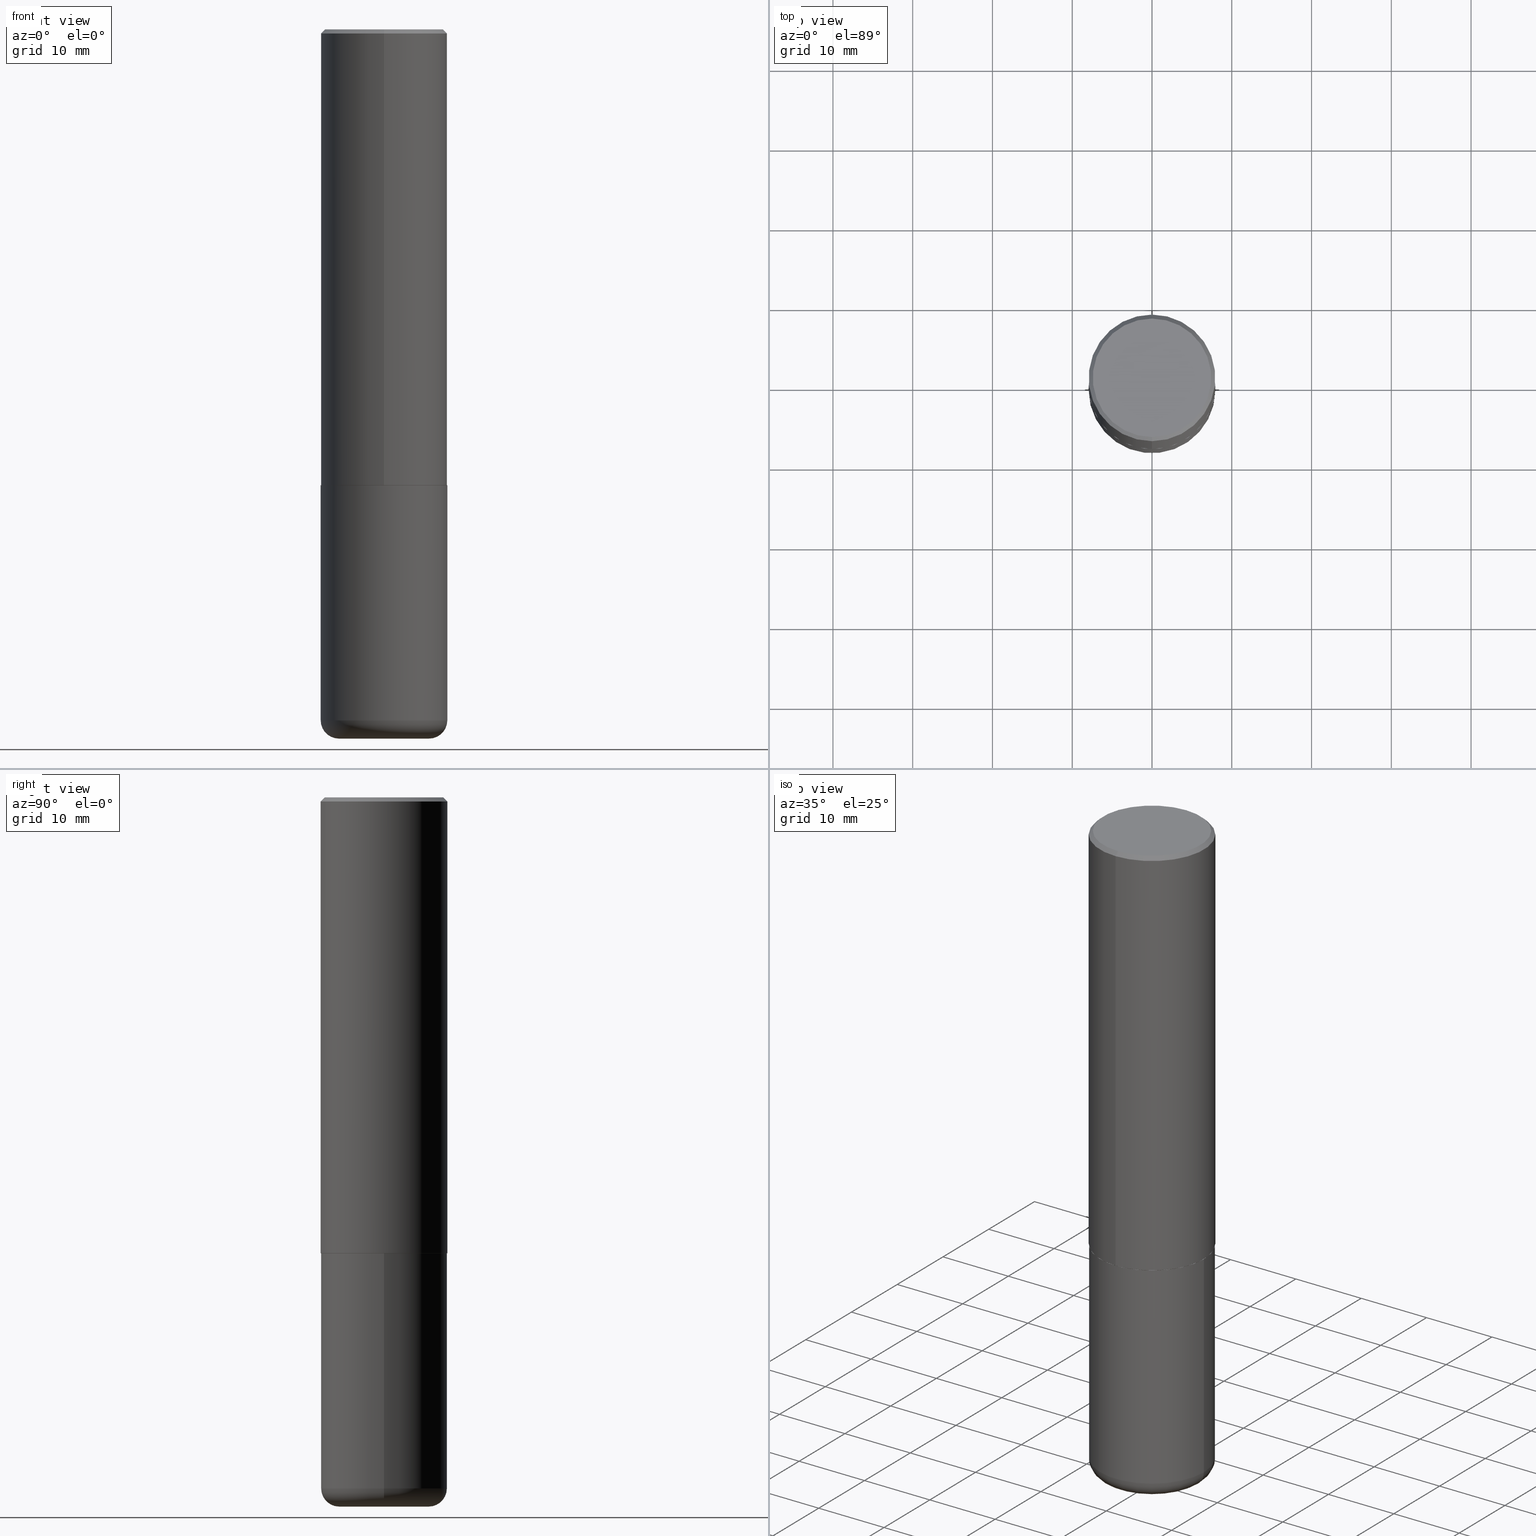
[diagram: canonical four-view strip — front | top / right | iso, engineering-drawing reading convention]
A machine part, canonical four-view strip (front | top / right | iso — engineering-drawing reading convention). The complete STEP part file that produces these views, byte-faithful:
ISO-10303-21;
HEADER;
FILE_DESCRIPTION (( 'STEP AP203' ),
    '1' );
FILE_NAME ('38384.STEP',
    '2024-03-03T02:08:29',
    ( '' ),
    ( '' ),
    'SwSTEP 2.0',
    'SolidWorks 2023',
    '' );
FILE_SCHEMA (( 'CONFIG_CONTROL_DESIGN' ));
ENDSEC;

DATA;
#1 = PRODUCT_DEFINITION ( 'UNKNOWN', '', #224, #147 ) ;
#2 = CARTESIAN_POINT ( 'NONE',  ( 8.339048629091315302E-29, -1.190595136545512608E-14, -3.410000000000000142 ) ) ;
#3 = EDGE_LOOP ( 'NONE', ( #358, #321, #197, #6 ) ) ;
#4 = VERTEX_POINT ( 'NONE', #395 ) ;
#5 = COORDINATED_UNIVERSAL_TIME_OFFSET ( 5, 0, .BEHIND. ) ;
#6 = ORIENTED_EDGE ( 'NONE', *, *, #263, .F. ) ;
#7 = APPROVAL_STATUS ( 'not_yet_approved' ) ;
#8 = DIRECTION ( 'NONE',  ( 1.000000000000000000, -6.982962677686265133E-15, 0.000000000000000000 ) ) ;
#9 = APPROVAL_PERSON_ORGANIZATION ( #298, #31, #103 ) ;
#10 = VECTOR ( 'NONE', #81, 39.37007874015748143 ) ;
#11 = CARTESIAN_POINT ( 'NONE',  ( -2.143905624303602824E-15, -0.3125000000000000555, -0.01999999999999897693 ) ) ;
#12 = DIRECTION ( 'NONE',  ( 0.000000000000000000, 0.000000000000000000, 1.000000000000000000 ) ) ;
#13 = CARTESIAN_POINT ( 'NONE',  ( -0.2225000000000000033, -1.016236620754480236E-14, -3.499999999999999112 ) ) ;
#14 = DIMENSIONAL_EXPONENTS ( 1.000000000000000000, 0.000000000000000000, 0.000000000000000000, 0.000000000000000000, 0.000000000000000000, 0.000000000000000000, 0.000000000000000000 ) ;
#15 = DIRECTION ( 'NONE',  ( 5.024295867787889629E-15, 0.7071067811865257013, 0.7071067811865691111 ) ) ;
#16 = CARTESIAN_POINT ( 'NONE',  ( 5.503935339096356978E-29, -7.853498007535872148E-15, -2.249999999999999556 ) ) ;
#17 = CYLINDRICAL_SURFACE ( 'NONE', #105, 0.3125000000000000000 ) ;
#18 = DIRECTION ( 'NONE',  ( -6.982962677686265133E-15, -1.000000000000000000, 3.496765431890256920E-15 ) ) ;
#19 = EDGE_CURVE ( 'NONE', #275, #136, #98, .T. ) ;
#20 = DIRECTION ( 'NONE',  ( -6.982962677686265133E-15, -1.000000000000000000, 3.490443558904832811E-15 ) ) ;
#21 = VECTOR ( 'NONE', #381, 39.37007874015748143 ) ;
#22 = DIRECTION ( 'NONE',  ( -6.982962677686266711E-15, -1.000000000000000000, 3.491481338843145583E-15 ) ) ;
#23 = EDGE_CURVE ( 'NONE', #90, #392, #182, .T. ) ;
#24 = VECTOR ( 'NONE', #310, 39.37007874015748143 ) ;
#25 = CARTESIAN_POINT ( 'NONE',  ( -0.3125000000000000000, -7.660446139675788393E-15, -2.249999999999999556 ) ) ;
#26 = EDGE_LOOP ( 'NONE', ( #289, #408, #257, #347 ) ) ;
#27 = CC_DESIGN_APPROVAL ( #346, ( #1 ) ) ;
#28 = APPLICATION_PROTOCOL_DEFINITION ( 'international standard', 'config_control_design', 1994, #38 ) ;
#29 = CALENDAR_DATE ( 2024, 2, 3 ) ;
#30 = DIRECTION ( 'NONE',  ( -2.446193484042825510E-29, 3.490443558904832811E-15, 1.000000000000000000 ) ) ;
#31 = APPROVAL ( #7, 'UNSPECIFIED' ) ;
#32 = APPROVAL_PERSON_ORGANIZATION ( #368, #346, #258 ) ;
#33 = CARTESIAN_POINT ( 'NONE',  ( 8.559140821647976968E-29, -1.222018468595100619E-14, -3.499999999999999112 ) ) ;
#34 = ORIENTED_EDGE ( 'NONE', *, *, #249, .T. ) ;
#35 = DATE_AND_TIME ( #397, #137 ) ;
#36 = DIRECTION ( 'NONE',  ( -2.445468806185136597E-29, 3.491481338843145583E-15, 1.000000000000000000 ) ) ;
#37 = CARTESIAN_POINT ( 'NONE',  ( -2.143905624303602824E-15, -0.3125000000000000555, -0.01999999999999897693 ) ) ;
#38 = APPLICATION_CONTEXT ( 'configuration controlled 3d designs of mechanical parts and assemblies' ) ;
#39 = CC_DESIGN_APPROVAL ( #40, ( #150 ) ) ;
#40 = APPROVAL ( #195, 'UNSPECIFIED' ) ;
#41 = LINE ( 'NONE', #274, #10 ) ;
#42 = CARTESIAN_POINT ( 'NONE',  ( 0.000000000000000000, 0.000000000000000000, 0.000000000000000000 ) ) ;
#43 = LINE ( 'NONE', #338, #234 ) ;
#44 = ADVANCED_FACE ( 'NONE', ( #228 ), #162, .T. ) ;
#45 = AXIS2_PLACEMENT_3D ( 'NONE', #390, #235, #8 ) ;
#46 = AXIS2_PLACEMENT_3D ( 'NONE', #206, #153, #117 ) ;
#47 = DIRECTION ( 'NONE',  ( -2.445468806185136877E-29, 3.491481338843145188E-15, 1.000000000000000000 ) ) ;
#48 = AXIS2_PLACEMENT_3D ( 'NONE', #79, #343, #210 ) ;
#49 = ORIENTED_EDGE ( 'NONE', *, *, #360, .T. ) ;
#50 = CARTESIAN_POINT ( 'NONE',  ( 8.339048629091315302E-29, -1.190595136545512608E-14, -3.410000000000000142 ) ) ;
#51 = CARTESIAN_POINT ( 'NONE',  ( 2.042516583223231356E-15, 0.2924999999999998157, -9.271992415134321098E-16 ) ) ;
#52 = AXIS2_PLACEMENT_3D ( 'NONE', #55, #288, #188 ) ;
#53 = DIRECTION ( 'NONE',  ( -2.445468806185136597E-29, 3.491481338843145583E-15, 1.000000000000000000 ) ) ;
#54 = AXIS2_PLACEMENT_3D ( 'NONE', #238, #83, #375 ) ;
#55 = CARTESIAN_POINT ( 'NONE',  ( 5.503935339096356978E-29, -7.853498007535872148E-15, -2.249999999999999556 ) ) ;
#56 = ADVANCED_FACE ( 'NONE', ( #126 ), #271, .T. ) ;
#57 = DIRECTION ( 'NONE',  ( -2.445468806185136597E-29, 3.491481338843145583E-15, 1.000000000000000000 ) ) ;
#58 = MANIFOLD_SOLID_BREP ( 'Body-Move/Copy2[1]', #253 ) ;
#59 = ORIENTED_EDGE ( 'NONE', *, *, #160, .T. ) ;
#60 = PERSON_AND_ORGANIZATION ( #303, #373 ) ;
#61 = CONICAL_SURFACE ( 'NONE', #46, 0.3125000000000000000, 0.7853981633974468357 ) ;
#62 = DIRECTION ( 'NONE',  ( -1.000000000000000000, 7.105427357600996337E-15, 0.000000000000000000 ) ) ;
#63 = AXIS2_PLACEMENT_3D ( 'NONE', #401, #366, #326 ) ;
#64 = PERSON_AND_ORGANIZATION_ROLE ( 'creator' ) ;
#65 = DIRECTION ( 'NONE',  ( 1.000000000000000000, -6.982962677686269077E-15, 0.000000000000000000 ) ) ;
#66 = ADVANCED_FACE ( 'NONE', ( #265 ), #68, .T. ) ;
#67 = COORDINATED_UNIVERSAL_TIME_OFFSET ( 5, 0, .BEHIND. ) ;
#68 = CYLINDRICAL_SURFACE ( 'NONE', #324, 0.3125000000000001665 ) ;
#69 = ORIENTED_EDGE ( 'NONE', *, *, #409, .F. ) ;
#70 = CARTESIAN_POINT ( 'NONE',  ( 0.000000000000000000, 0.000000000000000000, 0.000000000000000000 ) ) ;
#71 = CARTESIAN_POINT ( 'NONE',  ( 8.339048629091315302E-29, -1.190595136545512608E-14, -3.410000000000000142 ) ) ;
#72 = CIRCLE ( 'NONE', #226, 0.3125000000000002776 ) ;
#73 = MECHANICAL_CONTEXT ( 'NONE', #38, 'mechanical' ) ;
#74 = EDGE_LOOP ( 'NONE', ( #102, #184 ) ) ;
#75 = EDGE_CURVE ( 'NONE', #370, #319, #72, .T. ) ;
#76 = DIRECTION ( 'NONE',  ( 1.000000000000000000, -6.982962677686266711E-15, 4.876176775795936353E-29 ) ) ;
#77 = PRODUCT_RELATED_PRODUCT_CATEGORY ( 'detail', '', ( #223 ) ) ;
#78 = DIRECTION ( 'NONE',  ( -2.446193484042825510E-29, 3.490443558904832811E-15, 1.000000000000000000 ) ) ;
#79 = CARTESIAN_POINT ( 'NONE',  ( 5.502304813916556222E-29, -7.855833012397075293E-15, -2.249999999999999556 ) ) ;
#80 = EDGE_CURVE ( 'NONE', #376, #131, #312, .T. ) ;
#81 = DIRECTION ( 'NONE',  ( -2.445468806185136877E-29, 3.491481338843145188E-15, 1.000000000000000000 ) ) ;
#82 = ORIENTED_EDGE ( 'NONE', *, *, #308, .F. ) ;
#83 = DIRECTION ( 'NONE',  ( 2.438088387897960049E-29, -3.491481338843145188E-15, -1.000000000000000000 ) ) ;
#84 = DIRECTION ( 'NONE',  ( -6.982962677686265133E-15, -1.000000000000000000, 3.490443558904832416E-15 ) ) ;
#85 = EDGE_CURVE ( 'NONE', #90, #120, #158, .T. ) ;
#86 = DIRECTION ( 'NONE',  ( 1.000000000000000000, -6.982962677686269077E-15, 0.000000000000000000 ) ) ;
#87 = AXIS2_PLACEMENT_3D ( 'NONE', #341, #78, #143 ) ;
#88 = DIRECTION ( 'NONE',  ( 6.982962677686265922E-15, 1.000000000000000000, -3.490443558904832811E-15 ) ) ;
#89 = EDGE_CURVE ( 'NONE', #392, #90, #305, .T. ) ;
#90 = VERTEX_POINT ( 'NONE', #13 ) ;
#91 = PERSON_AND_ORGANIZATION ( #303, #373 ) ;
#92 = ORIENTED_EDGE ( 'NONE', *, *, #19, .T. ) ;
#93 = DATE_AND_TIME ( #362, #345 ) ;
#94 = DIRECTION ( 'NONE',  ( 1.000000000000000000, -6.982962677686264344E-15, 4.883557194083111780E-29 ) ) ;
#95 = CIRCLE ( 'NONE', #400, 0.3125000000000002776 ) ;
#96 = EDGE_CURVE ( 'NONE', #4, #275, #334, .T. ) ;
#97 = DIRECTION ( 'NONE',  ( 1.000000000000000000, 0.000000000000000000, 0.000000000000000000 ) ) ;
#98 = LINE ( 'NONE', #11, #209 ) ;
#99 = ORIENTED_EDGE ( 'NONE', *, *, #23, .F. ) ;
#100 = APPROVAL_DATE_TIME ( #261, #40 ) ;
#101 = DIRECTION ( 'NONE',  ( -2.446193484042825510E-29, 3.490443558904832811E-15, 1.000000000000000000 ) ) ;
#102 = ORIENTED_EDGE ( 'NONE', *, *, #96, .T. ) ;
#103 = APPROVAL_ROLE ( '' ) ;
#104 = CC_DESIGN_PERSON_AND_ORGANIZATION_ASSIGNMENT ( #290, #64, ( #224 ) ) ;
#105 = AXIS2_PLACEMENT_3D ( 'NONE', #42, #372, #76 ) ;
#106 = CARTESIAN_POINT ( 'NONE',  ( 2.182175836776958741E-15, 0.3124999999999999445, -0.02000000000000116268 ) ) ;
#107 = DIRECTION ( 'NONE',  ( -2.445468806185136597E-29, 3.491481338843145583E-15, 1.000000000000000000 ) ) ;
#108 = AXIS2_PLACEMENT_3D ( 'NONE', #413, #22, #348 ) ;
#109 = EDGE_CURVE ( 'NONE', #328, #131, #41, .T. ) ;
#110 = AXIS2_PLACEMENT_3D ( 'NONE', #16, #140, #273 ) ;
#111 = DIRECTION ( 'NONE',  ( -2.446193484042825510E-29, 3.490443558904832811E-15, 1.000000000000000000 ) ) ;
#112 = EDGE_LOOP ( 'NONE', ( #364, #165, #130, #388 ) ) ;
#113 = CYLINDRICAL_SURFACE ( 'NONE', #262, 0.3125000000000000000 ) ;
#114 = UNCERTAINTY_MEASURE_WITH_UNIT (LENGTH_MEASURE( 1.000000000000000082E-05 ), #191, 'distance_accuracy_value', 'NONE');
#115 = DIRECTION ( 'NONE',  ( 2.446193484042825510E-29, -3.490443558904832811E-15, -1.000000000000000000 ) ) ;
#116 = ADVANCED_FACE ( 'NONE', ( #173 ), #17, .T. ) ;
#117 = DIRECTION ( 'NONE',  ( 6.982962677686265133E-15, 1.000000000000000000, -3.496765431890256920E-15 ) ) ;
#118 = DIRECTION ( 'NONE',  ( 1.000000000000000000, -6.982962677686269077E-15, 0.000000000000000000 ) ) ;
#119 = CARTESIAN_POINT ( 'NONE',  ( -2.182175836776959136E-15, -0.3125000000000001665, 1.090763612157760722E-15 ) ) ;
#120 = VERTEX_POINT ( 'NONE', #411 ) ;
#121 = EDGE_CURVE ( 'NONE', #205, #136, #384, .T. ) ;
#122 = CARTESIAN_POINT ( 'NONE',  ( -2.075300644325887099E-15, -0.2924999999999998157, 1.208465739912124514E-15 ) ) ;
#123 = CONICAL_SURFACE ( 'NONE', #87, 0.3114999999999999991, 0.7853981633974141952 ) ;
#124 = PERSON_AND_ORGANIZATION_ROLE ( 'design_supplier' ) ;
#125 = COORDINATED_UNIVERSAL_TIME_OFFSET ( 5, 0, .BEHIND. ) ;
#126 = FACE_OUTER_BOUND ( 'NONE', #3, .T. ) ;
#127 = EDGE_CURVE ( 'NONE', #196, #370, #43, .T. ) ;
#128 = CALENDAR_DATE ( 2024, 2, 3 ) ;
#129 = CIRCLE ( 'NONE', #286, 0.3125000000000000000 ) ;
#130 = ORIENTED_EDGE ( 'NONE', *, *, #192, .T. ) ;
#131 = VERTEX_POINT ( 'NONE', #139 ) ;
#132 = DIRECTION ( 'NONE',  ( -4.851104656540956386E-15, -0.7071067811865489050, -0.7071067811865461294 ) ) ;
#133 = PRODUCT_DEFINITION_SHAPE ( 'NONE', 'NONE',  #1 ) ;
#134 = ADVANCED_FACE ( 'NONE', ( #146 ), #113, .T. ) ;
#135 = CARTESIAN_POINT ( 'NONE',  ( 5.501489145612312805E-29, -7.850007563976967685E-15, -2.248999999999999222 ) ) ;
#136 = VERTEX_POINT ( 'NONE', #37 ) ;
#137 = LOCAL_TIME ( 21, 8, 29.00000000000000000, #357 ) ;
#138 = AXIS2_PLACEMENT_3D ( 'NONE', #306, #377, #18 ) ;
#139 = CARTESIAN_POINT ( 'NONE',  ( 0.3125000000000000000, -1.003800884917403364E-14, -2.249999999999999556 ) ) ;
#140 = DIRECTION ( 'NONE',  ( -2.446193484042825510E-29, 3.490443558904832811E-15, 1.000000000000000000 ) ) ;
#141 = ADVANCED_FACE ( 'NONE', ( #272 ), #123, .T. ) ;
#142 = ORIENTED_EDGE ( 'NONE', *, *, #201, .T. ) ;
#143 = DIRECTION ( 'NONE',  ( -6.982962677686265922E-15, -1.000000000000000000, 3.507991003100177457E-15 ) ) ;
#144 = AXIS2_PLACEMENT_3D ( 'NONE', #2, #246, #213 ) ;
#145 = DIRECTION ( 'NONE',  ( -6.982962677686265133E-15, -1.000000000000000000, 3.496765431890256920E-15 ) ) ;
#146 = FACE_OUTER_BOUND ( 'NONE', #374, .T. ) ;
#147 = DESIGN_CONTEXT ( 'detailed design', #215, 'design' ) ;
#148 = ORIENTED_EDGE ( 'NONE', *, *, #23, .T. ) ;
#149 = DIRECTION ( 'NONE',  ( -2.446193484042825230E-29, 3.490443558904832811E-15, 1.000000000000000000 ) ) ;
#150 = SECURITY_CLASSIFICATION ( '', '', #325 ) ;
#151 = AXIS2_PLACEMENT_3D ( 'NONE', #33, #169, #299 ) ;
#152 = CARTESIAN_POINT ( 'NONE',  ( -4.586881837749487751E-45, 6.544965584476215341E-31, 1.875109989324615864E-16 ) ) ;
#153 = DIRECTION ( 'NONE',  ( 2.446193484042825510E-29, -3.490443558904832811E-15, -1.000000000000000000 ) ) ;
#154 = ADVANCED_FACE ( 'NONE', ( #344 ), #240, .T. ) ;
#155 = APPROVAL_PERSON_ORGANIZATION ( #60, #40, #163 ) ;
#156 = ORIENTED_EDGE ( 'NONE', *, *, #89, .F. ) ;
#157 = FACE_OUTER_BOUND ( 'NONE', #393, .T. ) ;
#158 = CIRCLE ( 'NONE', #285, 0.08999999999999964972 ) ;
#159 = ORIENTED_EDGE ( 'NONE', *, *, #80, .T. ) ;
#160 = EDGE_CURVE ( 'NONE', #319, #370, #95, .T. ) ;
#161 = ORIENTED_EDGE ( 'NONE', *, *, #360, .F. ) ;
#162 = PLANE ( 'NONE',  #63 ) ;
#163 = APPROVAL_ROLE ( '' ) ;
#164 = ORIENTED_EDGE ( 'NONE', *, *, #75, .T. ) ;
#165 = ORIENTED_EDGE ( 'NONE', *, *, #96, .F. ) ;
#166 = APPROVAL_DATE_TIME ( #93, #346 ) ;
#167 = AXIS2_PLACEMENT_3D ( 'NONE', #178, #307, #145 ) ;
#168 = ORIENTED_EDGE ( 'NONE', *, *, #121, .F. ) ;
#169 = DIRECTION ( 'NONE',  ( -2.445468806185136597E-29, 3.491481338843145583E-15, 1.000000000000000000 ) ) ;
#170 = ORIENTED_EDGE ( 'NONE', *, *, #127, .T. ) ;
#171 = DATE_TIME_ROLE ( 'creation_date' ) ;
#172 = DIRECTION ( 'NONE',  ( -6.982962677686265922E-15, -1.000000000000000000, 3.496765431890253764E-15 ) ) ;
#173 = FACE_OUTER_BOUND ( 'NONE', #387, .T. ) ;
#174 = CIRCLE ( 'NONE', #412, 0.2924999999999998157 ) ;
#175 = AXIS2_PLACEMENT_3D ( 'NONE', #71, #260, #94 ) ;
#176 = CC_DESIGN_PERSON_AND_ORGANIZATION_ASSIGNMENT ( #91, #264, ( #150 ) ) ;
#177 = CARTESIAN_POINT ( 'NONE',  ( 0.000000000000000000, 0.000000000000000000, 0.000000000000000000 ) ) ;
#178 = CARTESIAN_POINT ( 'NONE',  ( 4.892386968085667136E-31, -6.980887117809689435E-17, -0.02000000000000006981 ) ) ;
#179 = CARTESIAN_POINT ( 'NONE',  ( 4.892386968085667136E-31, -6.980887117809689435E-17, -0.02000000000000006981 ) ) ;
#180 = CC_DESIGN_DATE_AND_TIME_ASSIGNMENT ( #35, #171, ( #1 ) ) ;
#181 = CIRCLE ( 'NONE', #52, 0.3114999999999999991 ) ;
#182 = CIRCLE ( 'NONE', #361, 0.2225000000000000033 ) ;
#183 = FACE_OUTER_BOUND ( 'NONE', #112, .T. ) ;
#184 = ORIENTED_EDGE ( 'NONE', *, *, #293, .T. ) ;
#185 = DIRECTION ( 'NONE',  ( -2.446193484042825510E-29, 3.490443558904832811E-15, 1.000000000000000000 ) ) ;
#186 = FACE_OUTER_BOUND ( 'NONE', #292, .T. ) ;
#187 = CIRCLE ( 'NONE', #268, 0.3125000000000000000 ) ;
#188 = DIRECTION ( 'NONE',  ( -6.982962677686265922E-15, -1.000000000000000000, 3.507991003100177457E-15 ) ) ;
#189 = CARTESIAN_POINT ( 'NONE',  ( -2.182175836776905099E-15, -0.3125000000000081601, -2.248999999999998334 ) ) ;
#190 = ORIENTED_EDGE ( 'NONE', *, *, #320, .F. ) ;
#191 =( CONVERSION_BASED_UNIT ( 'INCH', #318 ) LENGTH_UNIT ( ) NAMED_UNIT ( #14 ) );
#192 = EDGE_CURVE ( 'NONE', #4, #205, #371, .T. ) ;
#193 = CC_DESIGN_APPROVAL ( #31, ( #224 ) ) ;
#194 = ORIENTED_EDGE ( 'NONE', *, *, #109, .F. ) ;
#195 = APPROVAL_STATUS ( 'not_yet_approved' ) ;
#196 = VERTEX_POINT ( 'NONE', #304 ) ;
#197 = ORIENTED_EDGE ( 'NONE', *, *, #300, .F. ) ;
#198 = CARTESIAN_POINT ( 'NONE',  ( 0.000000000000000000, 0.000000000000000000, 0.000000000000000000 ) ) ;
#199 = EDGE_LOOP ( 'NONE', ( #220, #159 ) ) ;
#200 = LOCAL_TIME ( 21, 8, 29.00000000000000000, #125 ) ;
#201 = EDGE_CURVE ( 'NONE', #370, #205, #314, .T. ) ;
#202 = CIRCLE ( 'NONE', #48, 0.3125000000000000000 ) ;
#203 = ORIENTED_EDGE ( 'NONE', *, *, #160, .F. ) ;
#204 = CARTESIAN_POINT ( 'NONE',  ( 8.559140821647976968E-29, -1.222018468595100619E-14, -3.499999999999999112 ) ) ;
#205 = VERTEX_POINT ( 'NONE', #211 ) ;
#206 = CARTESIAN_POINT ( 'NONE',  ( 4.892386968085667136E-31, -6.980887117809689435E-17, -0.02000000000000006981 ) ) ;
#207 = ADVANCED_FACE ( 'NONE', ( #208 ), #296, .T. ) ;
#208 = FACE_OUTER_BOUND ( 'NONE', #297, .T. ) ;
#209 = VECTOR ( 'NONE', #132, 39.37007874015748143 ) ;
#210 = DIRECTION ( 'NONE',  ( 1.000000000000000000, -6.982962677686265133E-15, 0.000000000000000000 ) ) ;
#211 = CARTESIAN_POINT ( 'NONE',  ( 2.182175836776958741E-15, 0.3124999999999999445, -0.02000000000000116268 ) ) ;
#212 = ORIENTED_EDGE ( 'NONE', *, *, #279, .T. ) ;
#213 = DIRECTION ( 'NONE',  ( 1.000000000000000000, -6.982962677686264344E-15, 4.883557194083111780E-29 ) ) ;
#214 = DIRECTION ( 'NONE',  ( -2.446193484042825510E-29, 3.490443558904832811E-15, 1.000000000000000000 ) ) ;
#215 = APPLICATION_CONTEXT ( 'configuration controlled 3d designs of mechanical parts and assemblies' ) ;
#216 = DIRECTION ( 'NONE',  ( -4.937700262164378437E-15, -0.7071067811865208164, 0.7071067811865739960 ) ) ;
#217 = ADVANCED_BREP_SHAPE_REPRESENTATION ( '38384', ( #58, #342, #280 ), #398 ) ;
#218 = LINE ( 'NONE', #119, #21 ) ;
#219 = ADVANCED_FACE ( 'NONE', ( #379 ), #404, .F. ) ;
#220 = ORIENTED_EDGE ( 'NONE', *, *, #236, .T. ) ;
#221 = DATE_AND_TIME ( #259, #232 ) ;
#222 = EDGE_LOOP ( 'NONE', ( #233, #92, #302, #386 ) ) ;
#223 = PRODUCT ( '38384', '38384', '', ( #73 ) ) ;
#224 = PRODUCT_DEFINITION_FORMATION_WITH_SPECIFIED_SOURCE ( 'ANY', '', #223, .NOT_KNOWN. ) ;
#225 = DATE_AND_TIME ( #29, #200 ) ;
#226 = AXIS2_PLACEMENT_3D ( 'NONE', #135, #30, #172 ) ;
#227 = ORIENTED_EDGE ( 'NONE', *, *, #300, .T. ) ;
#228 = FACE_OUTER_BOUND ( 'NONE', #402, .T. ) ;
#229 = CC_DESIGN_PERSON_AND_ORGANIZATION_ASSIGNMENT ( #365, #124, ( #224 ) ) ;
#230 = SHAPE_DEFINITION_REPRESENTATION ( #133, #217 ) ;
#231 =( NAMED_UNIT ( * ) SI_UNIT ( $, .STERADIAN. ) SOLID_ANGLE_UNIT ( ) );
#232 = LOCAL_TIME ( 21, 8, 29.00000000000000000, #67 ) ;
#233 = ORIENTED_EDGE ( 'NONE', *, *, #293, .F. ) ;
#234 = VECTOR ( 'NONE', #15, 39.37007874015748854 ) ;
#235 = DIRECTION ( 'NONE',  ( -2.445468806185136597E-29, 3.491481338843145583E-15, 1.000000000000000000 ) ) ;
#236 = EDGE_CURVE ( 'NONE', #131, #376, #202, .T. ) ;
#237 = DIRECTION ( 'NONE',  ( 4.937700262164540154E-15, 0.7071067811865440200, -0.7071067811865510144 ) ) ;
#238 = CARTESIAN_POINT ( 'NONE',  ( 5.502304813916556222E-29, -7.855833012397075293E-15, -2.249999999999999556 ) ) ;
#239 = CIRCLE ( 'NONE', #301, 0.3114999999999999991 ) ;
#240 = CONICAL_SURFACE ( 'NONE', #369, 0.3125000000000000000, 0.7853981633974468357 ) ;
#241 = CARTESIAN_POINT ( 'NONE',  ( 2.220446049250313475E-15, 0.3125000000000001665, -1.090763612157760722E-15 ) ) ;
#242 = ORIENTED_EDGE ( 'NONE', *, *, #80, .F. ) ;
#243 = EDGE_CURVE ( 'NONE', #136, #205, #352, .T. ) ;
#244 = DIRECTION ( 'NONE',  ( 1.000000000000000000, -6.982962677686266711E-15, 4.876176775795936353E-29 ) ) ;
#245 = ORIENTED_EDGE ( 'NONE', *, *, #243, .F. ) ;
#246 = DIRECTION ( 'NONE',  ( -2.445468806185136597E-29, 3.491481338843145583E-15, 1.000000000000000000 ) ) ;
#247 = CLOSED_SHELL ( 'NONE', ( #207, #66, #154, #255, #327, #141, #269, #336 ) ) ;
#248 = CARTESIAN_POINT ( 'NONE',  ( 5.503935339096356978E-29, -7.853498007535872148E-15, -2.249999999999999556 ) ) ;
#249 = EDGE_CURVE ( 'NONE', #120, #376, #276, .T. ) ;
#250 = CARTESIAN_POINT ( 'NONE',  ( -2.175192874099216718E-15, -0.3115000000000078817, -2.249999999999998668 ) ) ;
#251 = CYLINDRICAL_SURFACE ( 'NONE', #311, 0.3125000000000001665 ) ;
#252 = CC_DESIGN_SECURITY_CLASSIFICATION ( #150, ( #224 ) ) ;
#253 = CLOSED_SHELL ( 'NONE', ( #116, #56, #219, #134, #354, #44 ) ) ;
#254 = AXIS2_PLACEMENT_3D ( 'NONE', #267, #339, #20 ) ;
#255 = ADVANCED_FACE ( 'NONE', ( #183 ), #61, .T. ) ;
#256 = DIRECTION ( 'NONE',  ( -6.982962677686265922E-15, -1.000000000000000000, 3.490443558904832811E-15 ) ) ;
#257 = ORIENTED_EDGE ( 'NONE', *, *, #409, .T. ) ;
#258 = APPROVAL_ROLE ( '' ) ;
#259 = CALENDAR_DATE ( 2024, 2, 3 ) ;
#260 = DIRECTION ( 'NONE',  ( -2.445468806185136597E-29, 3.491481338843145583E-15, 1.000000000000000000 ) ) ;
#261 = DATE_AND_TIME ( #128, #399 ) ;
#262 = AXIS2_PLACEMENT_3D ( 'NONE', #177, #107, #244 ) ;
#263 = EDGE_CURVE ( 'NONE', #392, #328, #333, .T. ) ;
#264 = PERSON_AND_ORGANIZATION_ROLE ( 'classification_officer' ) ;
#265 = FACE_OUTER_BOUND ( 'NONE', #309, .T. ) ;
#266 = PERSON_AND_ORGANIZATION_ROLE ( 'creator' ) ;
#267 = CARTESIAN_POINT ( 'NONE',  ( -4.586881837749487751E-45, 6.544965584476215341E-31, 1.875109989324615864E-16 ) ) ;
#268 = AXIS2_PLACEMENT_3D ( 'NONE', #317, #53, #86 ) ;
#269 = ADVANCED_FACE ( 'NONE', ( #350 ), #316, .F. ) ;
#270 = EDGE_LOOP ( 'NONE', ( #82, #190 ) ) ;
#271 = TOROIDAL_SURFACE ( 'NONE', #175, 0.2225000000000000033, 0.08999999999999964972 ) ;
#272 = FACE_OUTER_BOUND ( 'NONE', #26, .T. ) ;
#273 = DIRECTION ( 'NONE',  ( -6.982962677686265922E-15, -1.000000000000000000, 3.507991003100177457E-15 ) ) ;
#274 = CARTESIAN_POINT ( 'NONE',  ( 0.3125000000000000000, -2.182175836776958347E-15, 1.523805242436230075E-29 ) ) ;
#275 = VERTEX_POINT ( 'NONE', #122 ) ;
#276 = LINE ( 'NONE', #410, #407 ) ;
#277 = ORIENTED_EDGE ( 'NONE', *, *, #249, .F. ) ;
#278 = CARTESIAN_POINT ( 'NONE',  ( 5.501489145612312805E-29, -7.850007563976967685E-15, -2.248999999999999222 ) ) ;
#279 = EDGE_CURVE ( 'NONE', #319, #136, #218, .T. ) ;
#280 = AXIS2_PLACEMENT_3D ( 'NONE', #70, #12, #97 ) ;
#281 = FACE_OUTER_BOUND ( 'NONE', #74, .T. ) ;
#282 = CARTESIAN_POINT ( 'NONE',  ( -2.175192874099216718E-15, -0.3115000000000078817, -2.249999999999998668 ) ) ;
#283 =( NAMED_UNIT ( * ) PLANE_ANGLE_UNIT ( ) SI_UNIT ( $, .RADIAN. ) );
#284 = ORIENTED_EDGE ( 'NONE', *, *, #85, .F. ) ;
#285 = AXIS2_PLACEMENT_3D ( 'NONE', #335, #330, #62 ) ;
#286 = AXIS2_PLACEMENT_3D ( 'NONE', #50, #57, #118 ) ;
#287 = ORIENTED_EDGE ( 'NONE', *, *, #308, .T. ) ;
#288 = DIRECTION ( 'NONE',  ( -2.446193484042825510E-29, 3.490443558904832811E-15, 1.000000000000000000 ) ) ;
#289 = ORIENTED_EDGE ( 'NONE', *, *, #127, .F. ) ;
#290 = PERSON_AND_ORGANIZATION ( #303, #373 ) ;
#291 = PERSON_AND_ORGANIZATION ( #303, #373 ) ;
#292 = EDGE_LOOP ( 'NONE', ( #284, #148, #313, #161 ) ) ;
#293 = EDGE_CURVE ( 'NONE', #275, #4, #174, .T. ) ;
#294 = VECTOR ( 'NONE', #216, 39.37007874015748854 ) ;
#295 = APPROVAL_DATE_TIME ( #225, #31 ) ;
#296 = CONICAL_SURFACE ( 'NONE', #110, 0.3114999999999999991, 0.7853981633974141952 ) ;
#297 = EDGE_LOOP ( 'NONE', ( #287, #170, #203, #69 ) ) ;
#298 = PERSON_AND_ORGANIZATION ( #303, #373 ) ;
#299 = DIRECTION ( 'NONE',  ( 1.000000000000000000, -6.982962677686269077E-15, 0.000000000000000000 ) ) ;
#300 = EDGE_CURVE ( 'NONE', #328, #120, #187, .T. ) ;
#301 = AXIS2_PLACEMENT_3D ( 'NONE', #355, #214, #353 ) ;
#302 = ORIENTED_EDGE ( 'NONE', *, *, #243, .T. ) ;
#303 = PERSON ( 'UNSPECIFIED', 'UNSPECIFIED', 'UNSPECIFIED', ('UNSPECIFIED'), ('UNSPECIFIED'), ('UNSPECIFIED') ) ;
#304 = CARTESIAN_POINT ( 'NONE',  ( 2.216893335571567797E-15, 0.3114999999999921720, -2.250000000000000888 ) ) ;
#305 = CIRCLE ( 'NONE', #151, 0.2225000000000000033 ) ;
#306 = CARTESIAN_POINT ( 'NONE',  ( 4.892386968085667136E-31, -6.980887117809689435E-17, -0.02000000000000006981 ) ) ;
#307 = DIRECTION ( 'NONE',  ( -2.446193484042825510E-29, 3.490443558904832811E-15, 1.000000000000000000 ) ) ;
#308 = EDGE_CURVE ( 'NONE', #378, #196, #239, .T. ) ;
#309 = EDGE_LOOP ( 'NONE', ( #59, #142, #245, #367 ) ) ;
#310 = DIRECTION ( 'NONE',  ( -2.446193484042825510E-29, 3.490443558904832811E-15, 1.000000000000000000 ) ) ;
#311 = AXIS2_PLACEMENT_3D ( 'NONE', #349, #322, #84 ) ;
#312 = CIRCLE ( 'NONE', #45, 0.3125000000000000000 ) ;
#313 = ORIENTED_EDGE ( 'NONE', *, *, #263, .T. ) ;
#314 = LINE ( 'NONE', #241, #24 ) ;
#315 = CARTESIAN_POINT ( 'NONE',  ( 2.220446049250341874E-15, 0.3124999999999924505, -2.249000000000000554 ) ) ;
#316 = PLANE ( 'NONE',  #359 ) ;
#317 = CARTESIAN_POINT ( 'NONE',  ( 8.339048629091315302E-29, -1.190595136545512608E-14, -3.410000000000000142 ) ) ;
#318 = LENGTH_MEASURE_WITH_UNIT ( LENGTH_MEASURE( 0.02539999999999999897 ), #416 );
#319 = VERTEX_POINT ( 'NONE', #189 ) ;
#320 = EDGE_CURVE ( 'NONE', #196, #378, #181, .T. ) ;
#321 = ORIENTED_EDGE ( 'NONE', *, *, #85, .T. ) ;
#322 = DIRECTION ( 'NONE',  ( -2.446193484042825510E-29, 3.490443558904832811E-15, 1.000000000000000000 ) ) ;
#323 = AXIS2_PLACEMENT_3D ( 'NONE', #51, #414, #88 ) ;
#324 = AXIS2_PLACEMENT_3D ( 'NONE', #198, #101, #332 ) ;
#325 = SECURITY_CLASSIFICATION_LEVEL ( 'unclassified' ) ;
#326 = DIRECTION ( 'NONE',  ( -1.000000000000000000, 6.982962677686265922E-15, -4.876176775795935793E-29 ) ) ;
#327 = ADVANCED_FACE ( 'NONE', ( #157 ), #251, .T. ) ;
#328 = VERTEX_POINT ( 'NONE', #380 ) ;
#329 = APPROVAL_STATUS ( 'not_yet_approved' ) ;
#330 = DIRECTION ( 'NONE',  ( 7.105427357601001859E-15, 1.000000000000000000, -3.491481338843145583E-15 ) ) ;
#331 = DATE_TIME_ROLE ( 'classification_date' ) ;
#332 = DIRECTION ( 'NONE',  ( -6.982962677686265133E-15, -1.000000000000000000, 3.490443558904832416E-15 ) ) ;
#333 = CIRCLE ( 'NONE', #108, 0.08999999999999964972 ) ;
#334 = CIRCLE ( 'NONE', #254, 0.2924999999999998157 ) ;
#335 = CARTESIAN_POINT ( 'NONE',  ( -0.2225000000000000033, -1.032499377838890215E-14, -3.410000000000000142 ) ) ;
#336 = ADVANCED_FACE ( 'NONE', ( #281 ), #385, .F. ) ;
#337 = APPLICATION_PROTOCOL_DEFINITION ( 'international standard', 'config_control_design', 1994, #215 ) ;
#338 = CARTESIAN_POINT ( 'NONE',  ( 2.213340621892766504E-15, 0.3114999999999921720, -2.250000000000000888 ) ) ;
#339 = DIRECTION ( 'NONE',  ( -2.446193484042825510E-29, 3.490443558904832811E-15, 1.000000000000000000 ) ) ;
#340 = CC_DESIGN_PERSON_AND_ORGANIZATION_ASSIGNMENT ( #291, #266, ( #1 ) ) ;
#341 = CARTESIAN_POINT ( 'NONE',  ( 5.503935339096356978E-29, -7.853498007535872148E-15, -2.249999999999999556 ) ) ;
#342 = MANIFOLD_SOLID_BREP ( 'Body-Move/Copy2[2]', #247 ) ;
#343 = DIRECTION ( 'NONE',  ( -2.445468806185136597E-29, 3.491481338843145583E-15, 1.000000000000000000 ) ) ;
#344 = FACE_OUTER_BOUND ( 'NONE', #222, .T. ) ;
#345 = LOCAL_TIME ( 21, 8, 29.00000000000000000, #5 ) ;
#346 = APPROVAL ( #329, 'UNSPECIFIED' ) ;
#347 = ORIENTED_EDGE ( 'NONE', *, *, #75, .F. ) ;
#348 = DIRECTION ( 'NONE',  ( 1.000000000000000000, -6.982962677686273810E-15, 0.000000000000000000 ) ) ;
#349 = CARTESIAN_POINT ( 'NONE',  ( 0.000000000000000000, 0.000000000000000000, 0.000000000000000000 ) ) ;
#350 = FACE_OUTER_BOUND ( 'NONE', #270, .T. ) ;
#351 = TOROIDAL_SURFACE ( 'NONE', #144, 0.2225000000000000033, 0.08999999999999964972 ) ;
#352 = CIRCLE ( 'NONE', #167, 0.3125000000000000000 ) ;
#353 = DIRECTION ( 'NONE',  ( -6.982962677686265922E-15, -1.000000000000000000, 3.507991003100177457E-15 ) ) ;
#354 = ADVANCED_FACE ( 'NONE', ( #186 ), #351, .T. ) ;
#355 = CARTESIAN_POINT ( 'NONE',  ( 5.503935339096356978E-29, -7.853498007535872148E-15, -2.249999999999999556 ) ) ;
#356 = ORIENTED_EDGE ( 'NONE', *, *, #236, .F. ) ;
#357 = COORDINATED_UNIVERSAL_TIME_OFFSET ( 5, 0, .BEHIND. ) ;
#358 = ORIENTED_EDGE ( 'NONE', *, *, #89, .T. ) ;
#359 = AXIS2_PLACEMENT_3D ( 'NONE', #248, #149, #256 ) ;
#360 = EDGE_CURVE ( 'NONE', #120, #328, #129, .T. ) ;
#361 = AXIS2_PLACEMENT_3D ( 'NONE', #204, #36, #65 ) ;
#362 = CALENDAR_DATE ( 2024, 2, 3 ) ;
#363 = PERSON_AND_ORGANIZATION ( #303, #373 ) ;
#364 = ORIENTED_EDGE ( 'NONE', *, *, #19, .F. ) ;
#365 = PERSON_AND_ORGANIZATION ( #303, #373 ) ;
#366 = DIRECTION ( 'NONE',  ( 2.438088387897960049E-29, -3.491481338843145188E-15, -1.000000000000000000 ) ) ;
#367 = ORIENTED_EDGE ( 'NONE', *, *, #279, .F. ) ;
#368 = PERSON_AND_ORGANIZATION ( #303, #373 ) ;
#369 = AXIS2_PLACEMENT_3D ( 'NONE', #179, #115, #406 ) ;
#370 = VERTEX_POINT ( 'NONE', #315 ) ;
#371 = LINE ( 'NONE', #106, #391 ) ;
#372 = DIRECTION ( 'NONE',  ( -2.445468806185136597E-29, 3.491481338843145583E-15, 1.000000000000000000 ) ) ;
#373 = ORGANIZATION ( 'UNSPECIFIED', 'UNSPECIFIED', '' ) ;
#374 = EDGE_LOOP ( 'NONE', ( #277, #49, #417, #242 ) ) ;
#375 = DIRECTION ( 'NONE',  ( -1.000000000000000000, 6.982962677686265922E-15, -4.876176775795935793E-29 ) ) ;
#376 = VERTEX_POINT ( 'NONE', #25 ) ;
#377 = DIRECTION ( 'NONE',  ( -2.446193484042825510E-29, 3.490443558904832811E-15, 1.000000000000000000 ) ) ;
#378 = VERTEX_POINT ( 'NONE', #250 ) ;
#379 = FACE_OUTER_BOUND ( 'NONE', #199, .T. ) ;
#380 = CARTESIAN_POINT ( 'NONE',  ( 0.3124999999999998890, -1.408812720223208442E-14, -3.410000000000000142 ) ) ;
#381 = DIRECTION ( 'NONE',  ( -2.446193484042825510E-29, 3.490443558904832811E-15, 1.000000000000000000 ) ) ;
#382 = LINE ( 'NONE', #282, #294 ) ;
#383 = CARTESIAN_POINT ( 'NONE',  ( 0.2225000000000000033, -1.377389388173620116E-14, -3.499999999999999112 ) ) ;
#384 = CIRCLE ( 'NONE', #138, 0.3125000000000000000 ) ;
#385 = PLANE ( 'NONE',  #323 ) ;
#386 = ORIENTED_EDGE ( 'NONE', *, *, #192, .F. ) ;
#387 = EDGE_LOOP ( 'NONE', ( #227, #34, #356, #194 ) ) ;
#388 = ORIENTED_EDGE ( 'NONE', *, *, #121, .T. ) ;
#389 = PERSON_AND_ORGANIZATION_ROLE ( 'design_owner' ) ;
#390 = CARTESIAN_POINT ( 'NONE',  ( 5.502304813916556222E-29, -7.855833012397075293E-15, -2.249999999999999556 ) ) ;
#391 = VECTOR ( 'NONE', #237, 39.37007874015748143 ) ;
#392 = VERTEX_POINT ( 'NONE', #383 ) ;
#393 = EDGE_LOOP ( 'NONE', ( #396, #164, #212, #168 ) ) ;
#394 = COORDINATED_UNIVERSAL_TIME_OFFSET ( 5, 0, .BEHIND. ) ;
#395 = CARTESIAN_POINT ( 'NONE',  ( 2.112346210000095049E-15, 0.2924999999999998157, -8.334437420472012427E-16 ) ) ;
#396 = ORIENTED_EDGE ( 'NONE', *, *, #201, .F. ) ;
#397 = CALENDAR_DATE ( 2024, 2, 3 ) ;
#398 =( GEOMETRIC_REPRESENTATION_CONTEXT ( 3 ) GLOBAL_UNCERTAINTY_ASSIGNED_CONTEXT ( ( #114 ) ) GLOBAL_UNIT_ASSIGNED_CONTEXT ( ( #191, #283, #231 ) ) REPRESENTATION_CONTEXT ( 'NONE', 'WORKASPACE' ) );
#399 = LOCAL_TIME ( 21, 8, 29.00000000000000000, #394 ) ;
#400 = AXIS2_PLACEMENT_3D ( 'NONE', #278, #111, #403 ) ;
#401 = CARTESIAN_POINT ( 'NONE',  ( 1.456070253248337680E-28, -3.625606728355569702E-15, -3.499999999999999112 ) ) ;
#402 = EDGE_LOOP ( 'NONE', ( #156, #99 ) ) ;
#403 = DIRECTION ( 'NONE',  ( -6.982962677686265922E-15, -1.000000000000000000, 3.496765431890253764E-15 ) ) ;
#404 = PLANE ( 'NONE',  #54 ) ;
#405 = CC_DESIGN_DATE_AND_TIME_ASSIGNMENT ( #221, #331, ( #150 ) ) ;
#406 = DIRECTION ( 'NONE',  ( 6.982962677686265133E-15, 1.000000000000000000, -3.496765431890256920E-15 ) ) ;
#407 = VECTOR ( 'NONE', #47, 39.37007874015748143 ) ;
#408 = ORIENTED_EDGE ( 'NONE', *, *, #320, .T. ) ;
#409 = EDGE_CURVE ( 'NONE', #378, #319, #382, .T. ) ;
#410 = CARTESIAN_POINT ( 'NONE',  ( -0.3125000000000000000, 2.220446049250313081E-15, -1.537167215704658232E-29 ) ) ;
#411 = CARTESIAN_POINT ( 'NONE',  ( -0.3124999999999998890, -9.685505316204812997E-15, -3.410000000000000142 ) ) ;
#412 = AXIS2_PLACEMENT_3D ( 'NONE', #152, #185, #418 ) ;
#413 = CARTESIAN_POINT ( 'NONE',  ( 0.2225000000000000033, -1.345966056124032105E-14, -3.410000000000000142 ) ) ;
#414 = DIRECTION ( 'NONE',  ( 2.446193484042825230E-29, -3.490443558904832811E-15, -1.000000000000000000 ) ) ;
#415 = CC_DESIGN_PERSON_AND_ORGANIZATION_ASSIGNMENT ( #363, #389, ( #223 ) ) ;
#416 =( LENGTH_UNIT ( ) NAMED_UNIT ( * ) SI_UNIT ( $, .METRE. ) );
#417 = ORIENTED_EDGE ( 'NONE', *, *, #109, .T. ) ;
#418 = DIRECTION ( 'NONE',  ( -6.982962677686265133E-15, -1.000000000000000000, 3.490443558904832811E-15 ) ) ;
ENDSEC;
END-ISO-10303-21;
